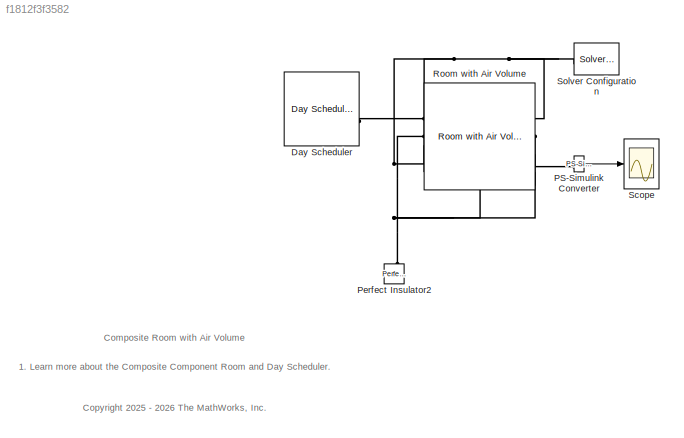
MODEL slx_f1812f3f3582
KIND model
CONFIG AbsTol = 1e-3
CONFIG EnableMultiTasking = off
CONFIG FixedStep = 3600
CONFIG MaxStep = .5
CONFIG MinStep = auto
CONFIG PreLoadFcn = WallModelParams
CONFIG RelTol = 1e-3
CONFIG SampleTimeConstraint = Unconstrained
CONFIG SolverName = daessc
CONFIG StartTime = 0.0
CONFIG StopTime = 7200
BLOCK [Reference] Day Scheduler  REF=DayScheduler_lib/Day Scheduler
  SourceBlock = DayScheduler_lib/Day Scheduler
  SourceType = Day Scheduler
BLOCK [Reference] PS-Simulink Converter  REF=nesl_utility/PS-Simulink
Converter
  SourceBlock = nesl_utility/PS-Simulink\nConverter
  SourceType = PS-Simulink\nConverter
BLOCK [Reference] Perfect Insulator2  REF=fl_lib/Thermal/Thermal Elements/Perfect Insulator
  NameLocation = right
  SourceBlock = fl_lib/Thermal/Thermal Elements/Perfect Insulator
  SourceType = Perfect Insulator
BLOCK [Reference] Room with Air Volume  REF=RoomWithAirVolume/Room with Air Volume
  SourceBlock = RoomWithAirVolume/Room with Air Volume
BLOCK [Scope] Scope
  ActiveDisplayYMaximum = 301.22790063086313
  ActiveDisplayYMinimum = 299.86356659657076
  Floating = off
  GraphicalSettings = {"Style":{"BackgroundColor":[0.12941176470588237,0.12941176470588237,0.12941176470588237],"AxesColor":[0.07058823529411765,0.07058823529411765,0.07058823529411765],"LabelsColor":[0.8509803921568627,0.8509803921568627,0.8509803921568627],"PreserveColors":false,"Visible":[true],"LineStyle":["-"],"LineWidth":[1.5],"BarWidth":[0.9],"LineColor":["auto"],"LineFaceAlpha":[1],"LineEdgeAlpha":[1],"Marker":...<+2040ch>
  MultipleDisplayCache = [{"MaxYLimMag":301.22790063086313,"MaxYLimReal":301.22790063086313,"MinYLimMag":299.86356659657076,"MinYLimReal":299.86356659657076,"PlotAsMagnitudePhase":false,"ShowGrid":true,"ShowLegend":false,"Title":"%<SignalLabel>","YLabel":""}]
  NumInputPorts = 1
  ScopeFrameLocation = window
  WasSavedAsWebScope = on
  WindowPosition = [1091.000000,390.000000,421.000000,399.000000,]
BLOCK [Reference] Solver Configuration  REF=nesl_utility/Solver
Configuration
  SourceBlock = nesl_utility/Solver\nConfiguration
  SourceType = Solver\nConfiguration
ANNOTATION (root): 1. Learn more about the Composite Component Room and Day Scheduler .
ANNOTATION (root): Composite Room with Air Volume
ANNOTATION (root): <copyright redacted>
LINE PS-Simulink Converter:1 -> Scope:1
PLINE Day Scheduler:RConn1 -- Room with Air Volume:LConn1
PLINE PS-Simulink Converter:LConn1 -- Room with Air Volume:RConn2
PNET net1: Perfect Insulator2:LConn1 -- Room with Air Volume:LConn2 -- Room with Air Volume:LConn3 -- Room with Air Volume:LConn4 -- Room with Air Volume:RConn1 -- Room with Air Volume:RConn3 -- Room with Air Volume:RConn4 -- Solver Configuration:RConn1
note: PNET lines group multi-terminal physical nets as a canonical sorted terminal list (undirected conserving connections); 2-terminal nets keep the pairwise PLINE form
